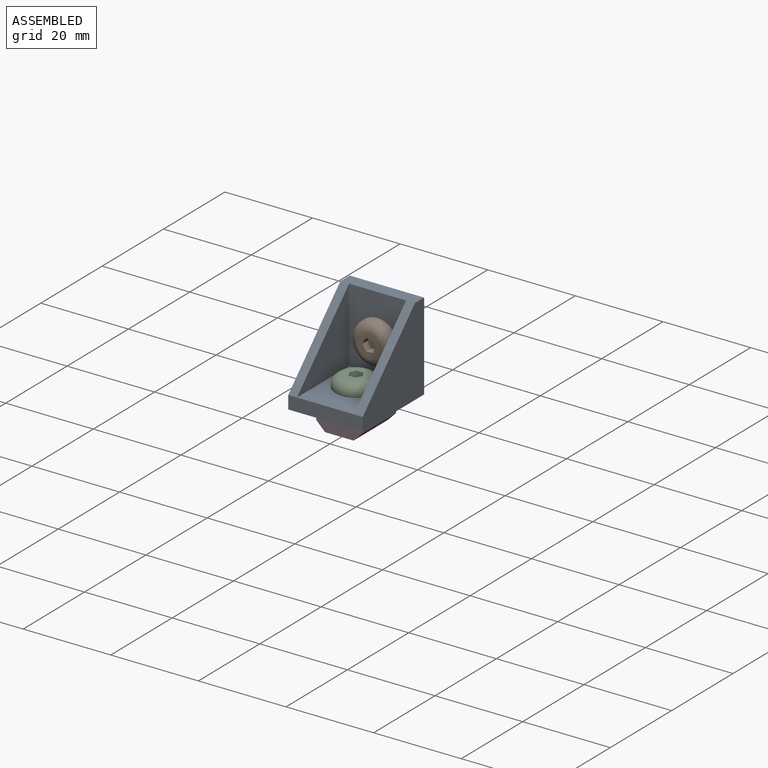
[diagram: assembled view]
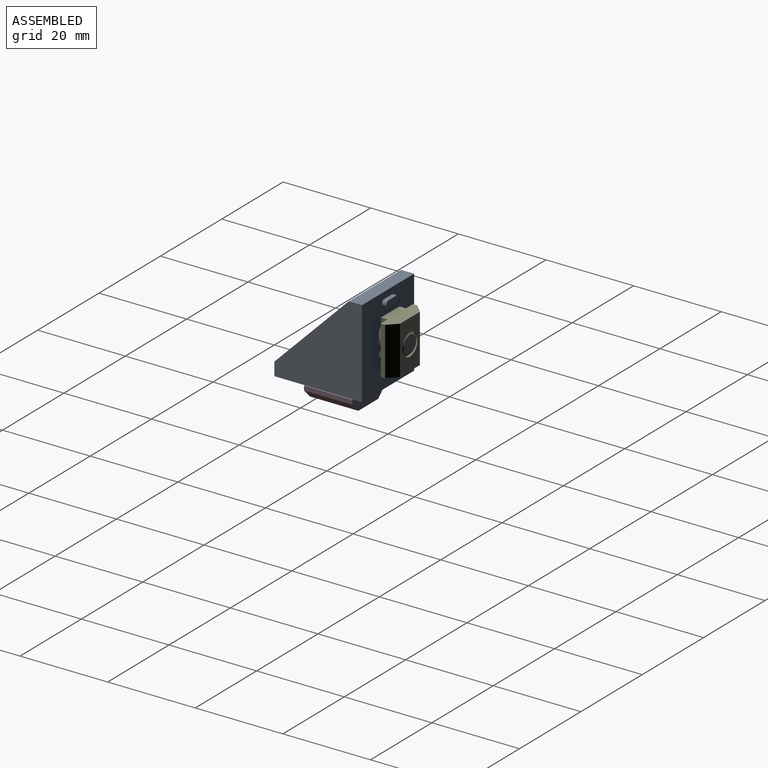
[diagram: assembled view, second angle]
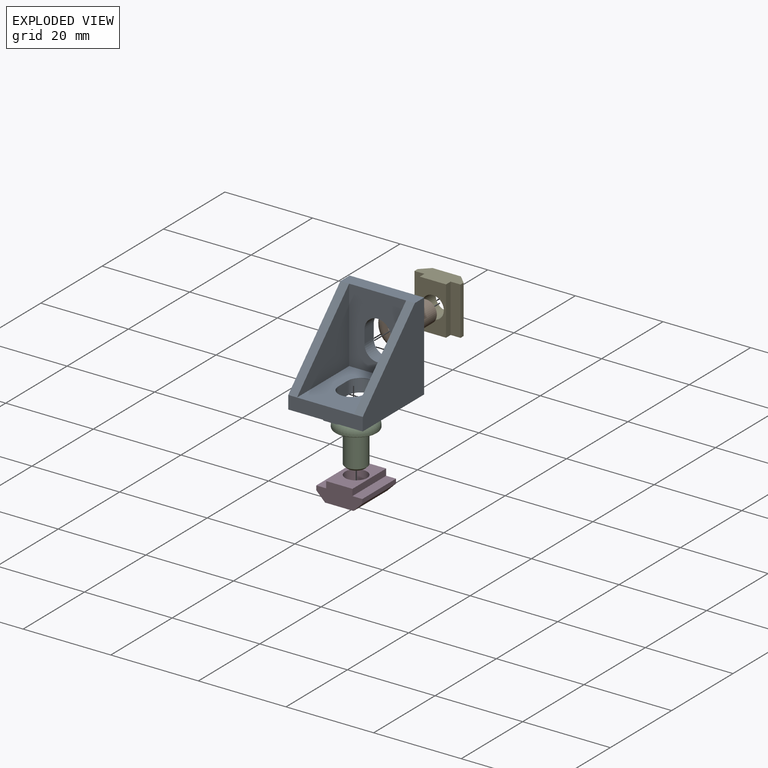
[diagram: exploded view]
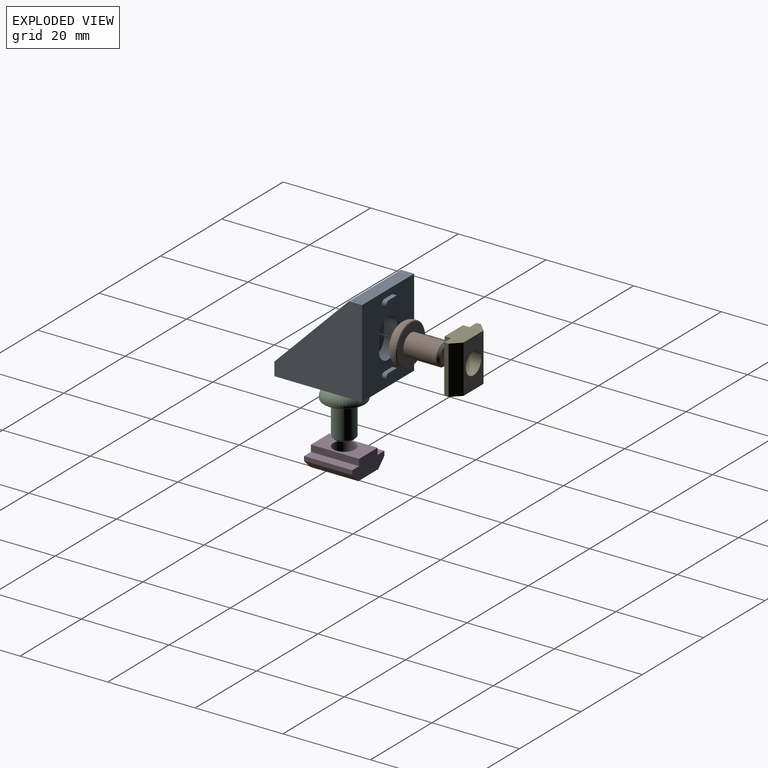
[diagram: exploded view, second angle]
ASSEMBLY  parts=5 mates=4
PART A: 40 faces, bbox 17x21x21 mm
  f0: plane 20x17mm, normal (0,0,-1), area 282.7mm2, adj f1,f5,f6,f7,f12,f13,f16,f17
  f1: plane 20x17mm, normal (0,1,0), area 282.7mm2, adj f0,f3,f6,f7,f14,f15,f18,f19
  f2: plane 17x17mm, normal (0,-0.71,0.71), area 48.1mm2, adj f3,f5,f7,f11
  f3: plane 17x3mm, normal (0,0,1), area 51mm2, adj f1,f2,f4,f6,f7,f8
  f4: plane 17x17mm, normal (0,-0.71,0.71), area 48.1mm2, adj f3,f5,f6,f10
  f5: plane 17x3mm, normal (0,-1,0), area 51mm2, adj f0,f2,f4,f6,f7,f9
  f6: plane 20x20mm, normal (1,0,0), area 255.5mm2, adj f0,f1,f3,f4,f5
  f7: plane 20x20mm, normal (-1,0,0), area 255.5mm2, adj f0,f1,f2,f3,f5
  f8: plane 17x13mm, normal (0,-1,0), area 174.7mm2, adj f3,f9,f10,f11,f14,f15,f18,f19
  f9: plane 17x13mm, normal (0,0,1), area 174.7mm2, adj f5,f8,f10,f11,f12,f13,f16,f17
  f10: plane 17x17mm, normal (-1,0,0), area 144.5mm2, adj f4,f8,f9
  f11: plane 17x17mm, normal (1,0,0), area 144.5mm2, adj f2,f8,f9
  f12: plane 3x3mm, normal (-1,0,0), area 9mm2, adj f0,f9,f16,f17
  f13: plane 3x3mm, normal (1,0,0), area 9mm2, adj f0,f9,f16,f17
  f14: plane 3x3mm, normal (-1,0,0), area 9mm2, adj f1,f8,f18,f19
  f15: plane 3x3mm, normal (1,0,0), area 9mm2, adj f1,f8,f18,f19
  f16: cylinder r=3mm len=6mm, axis (0,0,-1), area 28.3mm2, adj f0,f9,f12,f13
  f17: cylinder r=3mm len=6mm, axis (0,0,1), area 28.3mm2, adj f0,f9,f12,f13
  f18: cylinder r=3mm len=6mm, axis (0,1,0), area 28.3mm2, adj f1,f8,f14,f15
  f19: cylinder r=3mm len=6mm, axis (0,-1,0), area 28.3mm2, adj f1,f8,f14,f15
  f20: plane 2.5x1mm, normal (0,0,-1), area 2.5mm2, adj f1,f21,f32,f33
  f21: plane 4x1.5mm, normal (0,1,0), area 5.5mm2, adj f20,f22,f32,f33
  f22: plane 2.5x1mm, normal (0,0,1), area 2.5mm2, adj f1,f21,f32,f33
  f23: plane 2.5x1mm, normal (0,0,-1), area 2.5mm2, adj f1,f24,f34,f35
  f24: plane 4x1.5mm, normal (0,1,0), area 5.5mm2, adj f23,f25,f34,f35
  f25: plane 2.5x1mm, normal (0,0,1), area 2.5mm2, adj f1,f24,f34,f35
  f26: plane 2.5x1mm, normal (0,1,0), area 2.5mm2, adj f0,f28,f36,f37
  f27: plane 2.5x1mm, normal (0,-1,0), area 2.5mm2, adj f0,f28,f36,f37
  f28: plane 4x1.5mm, normal (0,0,-1), area 5.5mm2, adj f26,f27,f36,f37
  f29: plane 2.5x1mm, normal (0,-1,0), area 2.5mm2, adj f0,f30,f38,f39
  f30: plane 4x1.5mm, normal (0,0,-1), area 5.5mm2, adj f29,f31,f38,f39
  f31: plane 2.5x1mm, normal (0,1,0), area 2.5mm2, adj f0,f30,f38,f39
  f32: cylinder r=0.75mm len=1.5mm, axis (0,1,0), area 2.4mm2, adj f1,f20,f21,f22
  f33: cylinder r=0.75mm len=1.5mm, axis (0,-1,0), area 2.4mm2, adj f1,f20,f21,f22
  f34: cylinder r=0.75mm len=1.5mm, axis (0,1,0), area 2.4mm2, adj f1,f23,f24,f25
  f35: cylinder r=0.75mm len=1.5mm, axis (0,-1,0), area 2.4mm2, adj f1,f23,f24,f25
  f36: cylinder r=0.75mm len=1.5mm, axis (0,0,1), area 2.4mm2, adj f0,f26,f27,f28
  f37: cylinder r=0.75mm len=1.5mm, axis (0,0,-1), area 2.4mm2, adj f0,f26,f27,f28
  f38: cylinder r=0.75mm len=1.5mm, axis (0,0,-1), area 2.4mm2, adj f0,f29,f30,f31
  f39: cylinder r=0.75mm len=1.5mm, axis (0,0,1), area 2.4mm2, adj f0,f29,f30,f31
PART B: 15 faces, bbox 10.3x10.3x10.8 mm
  f0: cylinder r=4.75mm len=9.5mm, axis (0,0,-1), area 9mm2, adj f12,f13
  f1: plane 5.1x5.1mm, normal (0,0,1), area 14.3mm2, adj f5,f6,f7,f8,f9,f10,f12
  f2: plane 9x9mm, normal (0,0,-1), area 44mm2, adj f3,f13
  f3: cylinder r=2.5mm len=7.5mm, axis (0,0,1), area 117.8mm2, adj f2,f14
  f4: plane 4x4mm, normal (0,0,-1), area 12.6mm2, adj f14
  f5: plane 1.56x1.33mm, normal (0.87,-0.5,0), area 2.4mm2, adj f1,f6,f10,f11
  f6: plane 1.56x1.33mm, normal (0.87,0.5,0), area 2.4mm2, adj f1,f5,f7,f11
  f7: plane 1.56x1.54mm, normal (0,1,0), area 2.4mm2, adj f1,f6,f8,f11
  f8: plane 1.56x1.33mm, normal (-0.87,0.5,0), area 2.4mm2, adj f1,f7,f9,f11
  f9: plane 1.56x1.33mm, normal (-0.87,-0.5,0), area 2.4mm2, adj f1,f8,f10,f11
  f10: plane 1.56x1.54mm, normal (0,-1,0), area 2.4mm2, adj f1,f5,f9,f11
  f11: plane 3.07x2.66mm, normal (0,0,1), area 6.1mm2, adj f5,f6,f7,f8,f9,f10
  f12: torus R=2.55mm, axis (0,0,1), area 85.8mm2, adj f0,f1
  f13: torus R=4.5mm, axis (0,0,1), area 11.5mm2, adj f0,f2
  f14: cone r=2.5mm half-angle=45deg, axis (0,0,1), area 10mm2, adj f3,f4
PART C: same geometry as B
PART D: 13 faces, bbox 10.5x11x4.5 mm
  f0: plane 11x2.25mm, normal (0,0,-1), area 24.8mm2, adj f1,f3,f4,f8
  f1: plane 10.5x4.5mm, normal (0,-1,0), area 36.5mm2, adj f0,f2,f4,f6,f7,f8,f9,f10
  f2: plane 11x1mm, normal (1,0,0), area 11mm2, adj f1,f3,f7,f11
  f3: plane 10.5x4.5mm, normal (0,1,0), area 36.5mm2, adj f0,f2,f4,f6,f7,f8,f9,f10
  f4: plane 11x1mm, normal (-1,0,0), area 11mm2, adj f0,f1,f3,f12
  f5: cylinder r=2.5mm len=5mm, axis (0,0,-1), area 70.7mm2, adj f6,f10
  f6: plane 11x6.5mm, normal (0,0,1), area 51.9mm2, adj f1,f3,f5,f11,f12
  f7: plane 11x2.25mm, normal (0,0,-1), area 24.8mm2, adj f1,f2,f3,f9
  f8: plane 11x1.5mm, normal (-1,0,0), area 16.5mm2, adj f0,f1,f3,f10
  f9: plane 11x1.5mm, normal (1,0,0), area 16.5mm2, adj f1,f3,f7,f10
  f10: plane 11x6mm, normal (0,0,-1), area 46.4mm2, adj f1,f3,f5,f8,f9
  f11: plane 11x2mm, normal (0.71,0,0.71), area 31.1mm2, adj f1,f2,f3,f6
  f12: plane 11x2mm, normal (-0.71,0,0.71), area 31.1mm2, adj f1,f3,f4,f6
PART E: same geometry as D
PLACE A t=(-21.88,42.67,-20.52)mm
PLACE B rot(axis=(1,0,0),90deg) t=(55.82,-10.33,44.34)mm
PLACE C t=(55.82,32.8,-12.79)mm
PLACE D rot(axis=(1,0,0),180deg) t=(27.75,-27.33,-17.79)mm
PLACE E rot(axis=(-1,0,0),90deg) t=(27.75,-5.33,-15.8)mm
MATE fastened C.f0 <-> A.f9  axis (0,0,-1) through (-21.88,-17.33,-12.79)mm
MATE fastened B.f0 <-> A.f8  axis (0,-1,0) through (-21.88,-10.33,-5.79)mm
MATE fastened D.f5 <-> C.f0  axis (0,0,1) through (-21.88,-17.33,-20.79)mm
MATE fastened E.f5 <-> B.f0  axis (0,1,0) through (-21.88,-2.33,-5.79)mm
